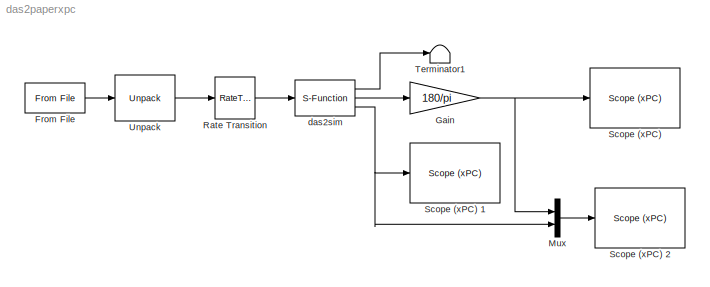
MODEL das2paperxpc
KIND model
BLOCK [Reference] From File  REF=xpclib/Misc./From File
  EOFOption = Hold last output
  Ports = [0, 1]
  SourceBlock = xpclib/Misc./From File
  SourceType = xpcfromfile
  bufSize = 40000
  dataSize = 816
  filename = 'infile'
  readSize = 4096
  sampTime = 0.05
BLOCK [Gain] Gain
  Gain = 180/pi
  OutDataTypeMode = Inherit via internal rule
  ParameterDataTypeMode = Inherit via internal rule
  SaturateOnIntegerOverflow = off
BLOCK [Mux] Mux
  DisplayOption = bar
  Inputs = 2
  Ports = [2, 1]
BLOCK [RateTransition] Rate Transition
  OutPortSampleTime = 0.001
  X0 = [0	\n0	\n0	\n0	\n0	\n0	\n0	\n0	\n0	\n0	\n0	\n0	\n0	\n0	\n0	\n0	\n0	\n0	\n0.04	\n0.04	\n0.04	\n0.04	\n0.04	\n0.04	\n0.02	\n0.02	\n0.02	\n0	\n0	\n0	\n0	\n0.02	\n0.02	\n0.02	\n0.02	\n0.07	\n0.07	\n0.07	\n0.07	\n0.07	\n0.07	\n0.07	\n0.07	\n0.07	\n0.07	\n0.07	\n0	\n0	\n0	\n0	\n0	\n0	\n0	\n0	\n0	\n0	\n0	\n0	\n0	\n0	\n0	\n0	\n0	\n0	\n0	\n0	\n0	\n0	\n0	\n0	\n0	\n0	\n0	\n0	\n0	\n0	\n0	\n0	\n0	\n0	\n0	\n0	\...<+82ch>
BLOCK [Reference] Scope (xPC)   REF=xpclib/Misc./Scope (xPC) 
  FunctionWithSeparateData = off
  Ports = [1]
  RTWMemSecDataConstants = Inherit from model
  RTWMemSecDataInternal = Inherit from model
  RTWMemSecDataParameters = Inherit from model
  RTWMemSecFuncExecute = Inherit from model
  RTWMemSecFuncInitTerm = Inherit from model
  ShowPortLabels = FromPortIcon
  SourceBlock = xpclib/Misc./Scope (xPC)
  SourceType = xpcscopeblock
  SystemSampleTime = -1
  autorestart = off
  autostart = on
  filename = angles.dat
  formatstr = '%15.6f'
  grid = on
  interleave = 50
  mode = Lazy
  noprepostsamples = 0
  nosamples = 300
  scopeno = 1
  scopetype = Target
  triggerlevel = 0.0
  triggermode = FreeRun
  triggersample = 0
  triggerscope = 1
  triggersignal = 1
  triggerslope = Either
  viewmode = Graphical rolling
  writesize = 512
  ylimits = [0,0]
BLOCK [Reference] Scope (xPC) 1  REF=xpclib/Misc./Scope (xPC) 
  FunctionWithSeparateData = off
  Ports = [1]
  RTWMemSecDataConstants = Inherit from model
  RTWMemSecDataInternal = Inherit from model
  RTWMemSecDataParameters = Inherit from model
  RTWMemSecFuncExecute = Inherit from model
  RTWMemSecFuncInitTerm = Inherit from model
  ShowPortLabels = FromPortIcon
  SourceBlock = xpclib/Misc./Scope (xPC)
  SourceType = xpcscopeblock
  SystemSampleTime = -1
  autorestart = off
  autostart = on
  filename = ghstab.dat
  formatstr = '%15.6f'
  grid = on
  interleave = 50
  mode = Lazy
  noprepostsamples = 0
  nosamples = 300
  scopeno = 2
  scopetype = Target
  triggerlevel = 0.0
  triggermode = FreeRun
  triggersample = 0
  triggerscope = 1
  triggersignal = 1
  triggerslope = Either
  viewmode = Graphical rolling
  writesize = 512
  ylimits = [0,0]
BLOCK [Reference] Scope (xPC) 2  REF=xpclib/Misc./Scope (xPC) 
  FunctionWithSeparateData = off
  Ports = [1]
  RTWMemSecDataConstants = Inherit from model
  RTWMemSecDataInternal = Inherit from model
  RTWMemSecDataParameters = Inherit from model
  RTWMemSecFuncExecute = Inherit from model
  RTWMemSecFuncInitTerm = Inherit from model
  ShowPortLabels = FromPortIcon
  SourceBlock = xpclib/Misc./Scope (xPC)
  SourceType = xpcscopeblock
  SystemSampleTime = -1
  autorestart = off
  autostart = on
  filename = data.dat
  formatstr = '%15.6f'
  grid = on
  interleave = 50
  mode = Lazy
  noprepostsamples = 0
  nosamples = 1000
  scopeno = 3
  scopetype = File
  triggerlevel = 0.0
  triggermode = FreeRun
  triggersample = 0
  triggerscope = 1
  triggersignal = 1
  triggerslope = Either
  viewmode = Graphical rolling
  writesize = 512
  ylimits = [0,1]
BLOCK [Terminator] Terminator1
BLOCK [Reference] Unpack  REF=xpclib/UDP/Unpack
  Ports = [1, 1]
  SourceBlock = xpclib/UDP/Unpack
  SourceType = xpcbyte2any
  byteAlign = 1
  datatypes = {'double'}
  dimensions = {[102]}
BLOCK [S-Function] das2sim
  FunctionName = das2sim
  Ports = [1, 3]
LINE From File:1 -> Unpack:1
NET Gain:1 -> Mux:1, Scope (xPC) :1
LINE Mux:1 -> Scope (xPC) 2:1
LINE Rate Transition:1 -> das2sim:1
LINE Unpack:1 -> Rate Transition:1
LINE das2sim:1 -> Terminator1:1
LINE das2sim:2 -> Gain:1
NET das2sim:3 -> Mux:2, Scope (xPC) 1:1
note: NET lines group one-source signal fan-out (src -> all destinations, sorted); 1:1 wires keep LINE
